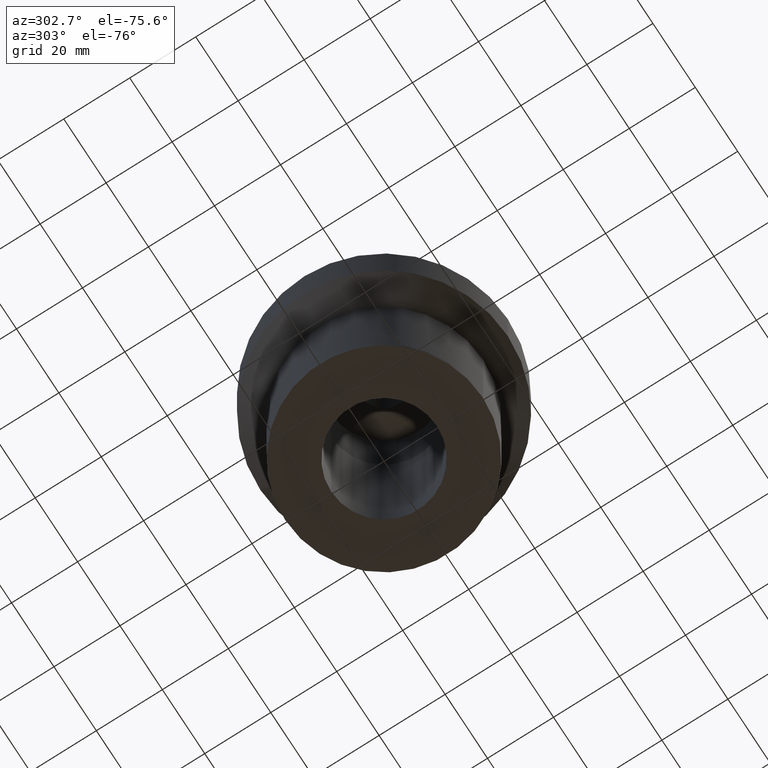
[diagram: clean part render]
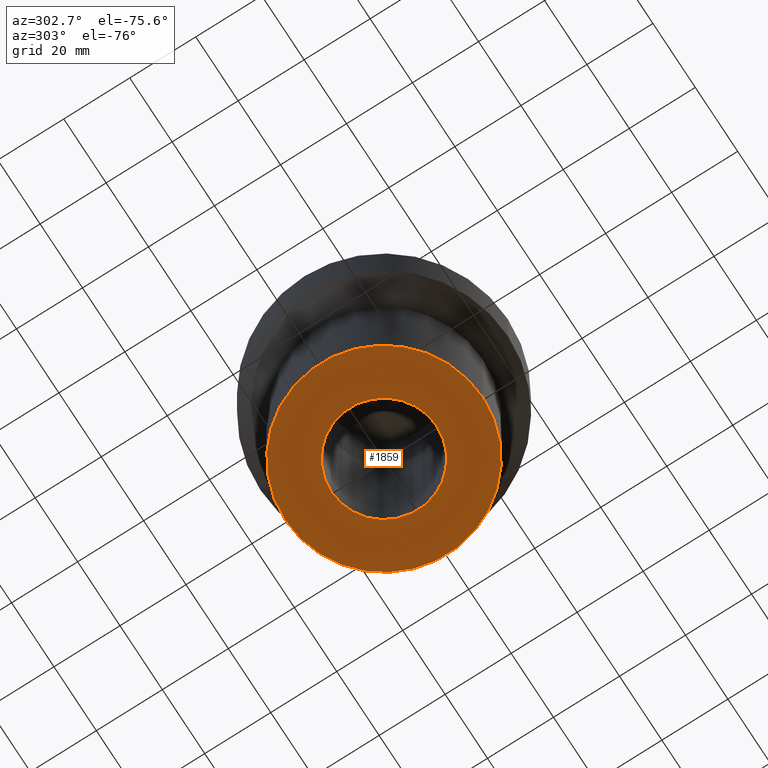
[diagram: same view with one face highlighted and labeled with its STEP entity id]
A machine part, auxiliary view. The second image highlights one B-rep face of the part: STEP entity #1859.
In plain terms, the highlighted planar face has unit normal (0, 0, -1).
Its self-contained STEP definition (entity closure, byte-faithful):
#811=CARTESIAN_POINT('',(0.E0,-1.281600165763E-14,-1.05E2));
#812=DIRECTION('',(0.E0,0.E0,1.E0));
#813=DIRECTION('',(0.E0,-1.E0,0.E0));
#814=AXIS2_PLACEMENT_3D('',#811,#812,#813);
#819=CARTESIAN_POINT('',(0.E0,-1.281600165763E-14,-1.05E2));
#820=DIRECTION('',(0.E0,0.E0,1.E0));
#821=DIRECTION('',(0.E0,1.E0,0.E0));
#822=AXIS2_PLACEMENT_3D('',#819,#820,#821);
#827=CARTESIAN_POINT('',(0.E0,0.E0,-1.05E2));
#828=DIRECTION('',(0.E0,0.E0,-1.E0));
#829=DIRECTION('',(0.E0,-1.E0,0.E0));
#830=AXIS2_PLACEMENT_3D('',#827,#828,#829);
#835=CARTESIAN_POINT('',(0.E0,0.E0,-1.05E2));
#836=DIRECTION('',(0.E0,0.E0,-1.E0));
#837=DIRECTION('',(0.E0,1.E0,0.E0));
#838=AXIS2_PLACEMENT_3D('',#835,#836,#837);
#1135=CARTESIAN_POINT('',(0.E0,1.6E1,-1.05E2));
#1136=VERTEX_POINT('',#1135);
#1137=CARTESIAN_POINT('',(0.E0,-1.6E1,-1.05E2));
#1138=VERTEX_POINT('',#1137);
#1139=CARTESIAN_POINT('',(0.E0,-2.9908E1,-1.05E2));
#1140=CARTESIAN_POINT('',(0.E0,2.9908E1,-1.05E2));
#1141=VERTEX_POINT('',#1139);
#1142=VERTEX_POINT('',#1140);
#1844=CARTESIAN_POINT('',(0.E0,-1.285879139105E-14,-1.05E2));
#1845=DIRECTION('',(0.E0,0.E0,-1.E0));
#1846=DIRECTION('',(0.E0,-1.E0,0.E0));
#1847=AXIS2_PLACEMENT_3D('',#1844,#1845,#1846);
#1848=PLANE('',#1847);
#1849=ORIENTED_EDGE('',*,*,#1823,.T.);
#1850=ORIENTED_EDGE('',*,*,#1839,.T.);
#1851=EDGE_LOOP('',(#1849,#1850));
#1852=FACE_OUTER_BOUND('',#1851,.F.);
#1854=ORIENTED_EDGE('',*,*,#1853,.T.);
#1856=ORIENTED_EDGE('',*,*,#1855,.T.);
#1857=EDGE_LOOP('',(#1854,#1856));
#1858=FACE_BOUND('',#1857,.F.);
#815=CIRCLE('',#814,2.9908E1);
#823=CIRCLE('',#822,2.9908E1);
#831=CIRCLE('',#830,1.6E1);
#839=CIRCLE('',#838,1.6E1);
#1823=EDGE_CURVE('',#1141,#1142,#815,.T.);
#1839=EDGE_CURVE('',#1142,#1141,#823,.T.);
#1853=EDGE_CURVE('',#1138,#1136,#831,.T.);
#1855=EDGE_CURVE('',#1136,#1138,#839,.T.);
#1859=ADVANCED_FACE('',(#1852,#1858),#1848,.T.);